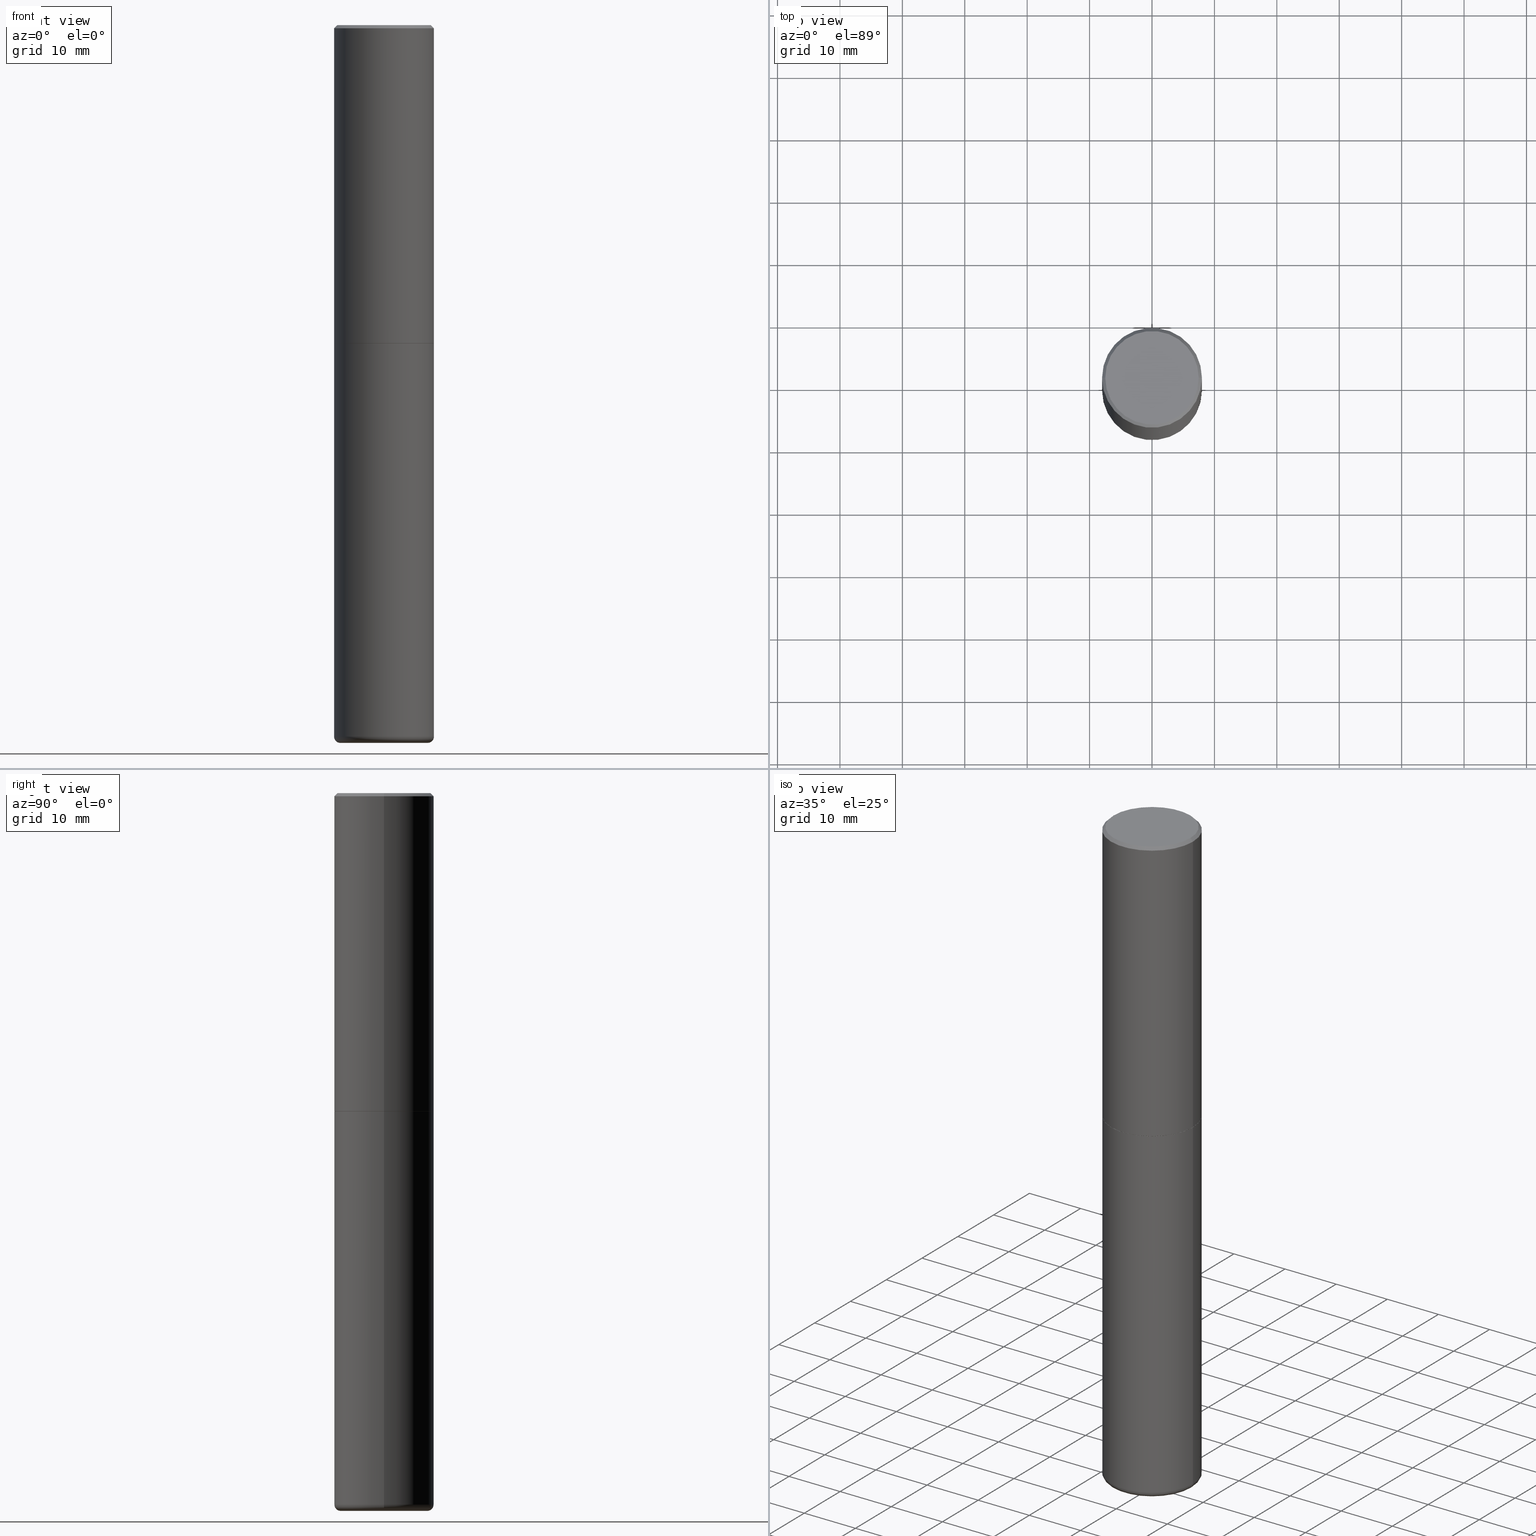
[diagram: canonical four-view strip — front | top / right | iso, engineering-drawing reading convention]
A machine part, canonical four-view strip (front | top / right | iso — engineering-drawing reading convention). The complete STEP part file that produces these views, byte-faithful:
ISO-10303-21;
HEADER;
FILE_DESCRIPTION (( 'STEP AP203' ),
    '1' );
FILE_NAME ('74500.STEP',
    '2024-03-06T15:20:27',
    ( '' ),
    ( '' ),
    'SwSTEP 2.0',
    'SolidWorks 2023',
    '' );
FILE_SCHEMA (( 'CONFIG_CONTROL_DESIGN' ));
ENDSEC;

DATA;
#1 = CARTESIAN_POINT ( 'NONE',  ( 0.2755500000000000171, -1.773218627558267691E-14, -4.527600000000000513 ) ) ;
#2 = EDGE_CURVE ( 'NONE', #312, #53, #48, .T. ) ;
#3 = PERSON_AND_ORGANIZATION ( #212, #323 ) ;
#4 = DIRECTION ( 'NONE',  ( 1.000000000000000000, -6.982962677686265922E-15, 0.000000000000000000 ) ) ;
#5 = SECURITY_CLASSIFICATION_LEVEL ( 'unclassified' ) ;
#6 = EDGE_CURVE ( 'NONE', #248, #145, #142, .T. ) ;
#7 = DIRECTION ( 'NONE',  ( 1.000000000000000000, -6.982962677686267499E-15, 0.000000000000000000 ) ) ;
#8 = EDGE_CURVE ( 'NONE', #146, #207, #82, .T. ) ;
#9 = CIRCLE ( 'NONE', #265, 0.2755500000000000171 ) ;
#10 = ORIENTED_EDGE ( 'NONE', *, *, #131, .F. ) ;
#11 = EDGE_CURVE ( 'NONE', #400, #105, #41, .T. ) ;
#12 = AXIS2_PLACEMENT_3D ( 'NONE', #37, #226, #35 ) ;
#13 = ADVANCED_FACE ( 'NONE', ( #186 ), #164, .T. ) ;
#14 = ORIENTED_EDGE ( 'NONE', *, *, #111, .F. ) ;
#15 = DIRECTION ( 'NONE',  ( 1.000000000000000000, -6.982962677686265922E-15, 4.874125435057328359E-29 ) ) ;
#16 = APPROVAL_STATUS ( 'not_yet_approved' ) ;
#17 = FACE_OUTER_BOUND ( 'NONE', #76, .T. ) ;
#18 = DIRECTION ( 'NONE',  ( -0.7071067811866199593, 7.493145998870616062E-15, 0.7071067811864750752 ) ) ;
#19 = VERTEX_POINT ( 'NONE', #192 ) ;
#20 = DIRECTION ( 'NONE',  ( 1.000000000000000000, -6.982962677686266711E-15, 0.000000000000000000 ) ) ;
#21 = APPROVAL ( #16, 'UNSPECIFIED' ) ;
#22 = PRODUCT_DEFINITION_SHAPE ( 'NONE', 'NONE',  #288 ) ;
#23 = DIRECTION ( 'NONE',  ( -2.445468806185136597E-29, 3.491481338843145583E-15, 1.000000000000000000 ) ) ;
#24 = ORIENTED_EDGE ( 'NONE', *, *, #163, .T. ) ;
#25 = AXIS2_PLACEMENT_3D ( 'NONE', #381, #222, #189 ) ;
#26 = CIRCLE ( 'NONE', #89, 0.03940000000000033753 ) ;
#27 = CARTESIAN_POINT ( 'NONE',  ( 4.910256815939135870E-29, -7.010545380263151710E-15, -2.007899999999999796 ) ) ;
#28 = FACE_OUTER_BOUND ( 'NONE', #340, .T. ) ;
#29 = DIRECTION ( 'NONE',  ( -2.445468806185136597E-29, 3.491481338843145583E-15, 1.000000000000000000 ) ) ;
#30 = DIRECTION ( 'NONE',  ( -2.445468806185136877E-29, 3.491481338843145188E-15, 1.000000000000000000 ) ) ;
#31 = ORIENTED_EDGE ( 'NONE', *, *, #281, .F. ) ;
#32 = AXIS2_PLACEMENT_3D ( 'NONE', #206, #246, #15 ) ;
#33 = AXIS2_PLACEMENT_3D ( 'NONE', #379, #23, #385 ) ;
#34 = DIRECTION ( 'NONE',  ( -2.445468806185136597E-29, 3.491481338843145583E-15, 1.000000000000000000 ) ) ;
#35 = DIRECTION ( 'NONE',  ( 1.000000000000000000, -6.982962677686265922E-15, 0.000000000000000000 ) ) ;
#36 = EDGE_LOOP ( 'NONE', ( #43, #205, #403, #285 ) ) ;
#37 = CARTESIAN_POINT ( 'NONE',  ( 4.890937612370289799E-31, -6.982962677686315028E-17, -0.02000000000000006981 ) ) ;
#38 = CONICAL_SURFACE ( 'NONE', #185, 0.3149499999999998967, 0.7853981633974471688 ) ;
#39 = EDGE_CURVE ( 'NONE', #276, #304, #26, .T. ) ;
#40 = EDGE_CURVE ( 'NONE', #53, #216, #125, .T. ) ;
#41 = CIRCLE ( 'NONE', #270, 0.03940000000000033753 ) ;
#42 = DATE_AND_TIME ( #203, #272 ) ;
#43 = ORIENTED_EDGE ( 'NONE', *, *, #40, .F. ) ;
#44 = DIRECTION ( 'NONE',  ( -0.7071067811865466846, 2.468850131082247989E-15, -0.7071067811865483499 ) ) ;
#45 = PERSON_AND_ORGANIZATION ( #212, #323 ) ;
#46 = AXIS2_PLACEMENT_3D ( 'NONE', #96, #171, #7 ) ;
#47 = CARTESIAN_POINT ( 'NONE',  ( -0.3149500000000000077, 2.237854346276435590E-15, -1.549218606675782676E-29 ) ) ;
#48 = LINE ( 'NONE', #179, #394 ) ;
#49 = VERTEX_POINT ( 'NONE', #158 ) ;
#50 = APPROVAL ( #119, 'UNSPECIFIED' ) ;
#51 = DIRECTION ( 'NONE',  ( -2.445468806185136597E-29, 3.491481338843145583E-15, 1.000000000000000000 ) ) ;
#52 = DIRECTION ( 'NONE',  ( 7.105427357601001859E-15, 1.000000000000000000, -3.491481338843145583E-15 ) ) ;
#53 = VERTEX_POINT ( 'NONE', #55 ) ;
#54 = CARTESIAN_POINT ( 'NONE',  ( 4.910256815939135870E-29, -7.010545380263151710E-15, -2.007899999999999796 ) ) ;
#55 = CARTESIAN_POINT ( 'NONE',  ( -0.3149500000000002853, -1.300587416574145677E-15, -2.006899999999999906 ) ) ;
#56 = VECTOR ( 'NONE', #365, 39.37007874015748143 ) ;
#57 = AXIS2_PLACEMENT_3D ( 'NONE', #27, #318, #61 ) ;
#58 = AXIS2_PLACEMENT_3D ( 'NONE', #328, #29, #292 ) ;
#59 = DIRECTION ( 'NONE',  ( -1.000000000000000000, 6.982962677686265922E-15, 0.000000000000000000 ) ) ;
#60 = DIRECTION ( 'NONE',  ( -1.000000000000000000, 6.982962677686265922E-15, -4.876176775795935793E-29 ) ) ;
#61 = DIRECTION ( 'NONE',  ( 1.000000000000000000, -6.982962677686266711E-15, 0.000000000000000000 ) ) ;
#62 = CARTESIAN_POINT ( 'NONE',  ( 4.890937612370289799E-31, -6.982962677686315028E-17, -0.02000000000000006981 ) ) ;
#63 = VECTOR ( 'NONE', #30, 39.37007874015748143 ) ;
#64 = APPROVAL ( #109, 'UNSPECIFIED' ) ;
#65 = APPROVAL_PERSON_ORGANIZATION ( #279, #21, #182 ) ;
#66 = APPROVAL_DATE_TIME ( #356, #50 ) ;
#67 = APPROVAL_DATE_TIME ( #327, #21 ) ;
#68 = CALENDAR_DATE ( 2024, 6, 3 ) ;
#69 = ORIENTED_EDGE ( 'NONE', *, *, #199, .T. ) ;
#70 = ADVANCED_FACE ( 'NONE', ( #259 ), #407, .T. ) ;
#71 = ORIENTED_EDGE ( 'NONE', *, *, #290, .T. ) ;
#72 = LENGTH_MEASURE_WITH_UNIT ( LENGTH_MEASURE( 0.02539999999999999897 ), #215 );
#73 = DIMENSIONAL_EXPONENTS ( 1.000000000000000000, 0.000000000000000000, 0.000000000000000000, 0.000000000000000000, 0.000000000000000000, 0.000000000000000000, 0.000000000000000000 ) ;
#74 = CC_DESIGN_APPROVAL ( #64, ( #291 ) ) ;
#75 = EDGE_CURVE ( 'NONE', #400, #276, #9, .T. ) ;
#76 = EDGE_LOOP ( 'NONE', ( #178, #173 ) ) ;
#77 = AXIS2_PLACEMENT_3D ( 'NONE', #149, #280, #402 ) ;
#78 = ADVANCED_FACE ( 'NONE', ( #311 ), #325, .T. ) ;
#79 = DATE_AND_TIME ( #97, #95 ) ;
#80 = DIRECTION ( 'NONE',  ( -2.445468806185136597E-29, 3.491481338843145583E-15, 1.000000000000000000 ) ) ;
#81 = UNCERTAINTY_MEASURE_WITH_UNIT (LENGTH_MEASURE( 1.000000000000000082E-05 ), #234, 'distance_accuracy_value', 'NONE');
#82 = LINE ( 'NONE', #220, #211 ) ;
#83 = ORIENTED_EDGE ( 'NONE', *, *, #387, .F. ) ;
#84 = DIRECTION ( 'NONE',  ( -1.000000000000000000, 7.105427357601014480E-15, 0.000000000000000000 ) ) ;
#85 = FACE_OUTER_BOUND ( 'NONE', #376, .T. ) ;
#86 = DIRECTION ( 'NONE',  ( 1.000000000000000000, -6.982962677686266711E-15, 0.000000000000000000 ) ) ;
#87 = AXIS2_PLACEMENT_3D ( 'NONE', #332, #268, #148 ) ;
#88 = ORIENTED_EDGE ( 'NONE', *, *, #111, .T. ) ;
#89 = AXIS2_PLACEMENT_3D ( 'NONE', #130, #260, #409 ) ;
#90 = DIRECTION ( 'NONE',  ( -2.445468806185136597E-29, 3.491481338843145583E-15, 1.000000000000000000 ) ) ;
#91 = CARTESIAN_POINT ( 'NONE',  ( 1.107210456688382522E-28, -1.580803090974622705E-14, -4.527600000000000513 ) ) ;
#92 = DIRECTION ( 'NONE',  ( 1.000000000000000000, -6.982962677686263555E-15, 0.000000000000000000 ) ) ;
#93 = CARTESIAN_POINT ( 'NONE',  ( 4.910256815939135870E-29, -7.010545380263151710E-15, -2.007899999999999796 ) ) ;
#94 = DIRECTION ( 'NONE',  ( -2.445468806185136597E-29, 3.491481338843145583E-15, 1.000000000000000000 ) ) ;
#95 = LOCAL_TIME ( 10, 20, 27.00000000000000000, #329 ) ;
#96 = CARTESIAN_POINT ( 'NONE',  ( 4.907811347132950267E-29, -7.007053898924307914E-15, -2.006899999999999906 ) ) ;
#97 = CALENDAR_DATE ( 2024, 6, 3 ) ;
#98 = ORIENTED_EDGE ( 'NONE', *, *, #11, .T. ) ;
#99 = COORDINATED_UNIVERSAL_TIME_OFFSET ( 5, 0, .BEHIND. ) ;
#100 =( NAMED_UNIT ( * ) SI_UNIT ( $, .STERADIAN. ) SOLID_ANGLE_UNIT ( ) );
#101 = AXIS2_PLACEMENT_3D ( 'NONE', #294, #90, #224 ) ;
#102 = EDGE_LOOP ( 'NONE', ( #69, #98, #397, #150 ) ) ;
#103 = MANIFOLD_SOLID_BREP ( 'Body-Move/Copy2[1]', #162 ) ;
#104 = APPROVAL_PERSON_ORGANIZATION ( #341, #64, #374 ) ;
#105 = VERTEX_POINT ( 'NONE', #345 ) ;
#106 =( NAMED_UNIT ( * ) PLANE_ANGLE_UNIT ( ) SI_UNIT ( $, .RADIAN. ) );
#107 = ORIENTED_EDGE ( 'NONE', *, *, #168, .F. ) ;
#108 = ORIENTED_EDGE ( 'NONE', *, *, #6, .F. ) ;
#109 = APPROVAL_STATUS ( 'not_yet_approved' ) ;
#110 = LINE ( 'NONE', #184, #364 ) ;
#111 = EDGE_CURVE ( 'NONE', #304, #301, #315, .T. ) ;
#112 = ORIENTED_EDGE ( 'NONE', *, *, #333, .F. ) ;
#113 = ORIENTED_EDGE ( 'NONE', *, *, #8, .F. ) ;
#114 = CARTESIAN_POINT ( 'NONE',  ( 4.890937612370289799E-31, -6.982962677686315028E-17, -0.02000000000000006981 ) ) ;
#115 = DIRECTION ( 'NONE',  ( 1.000000000000000000, -6.982962677686266711E-15, 4.876176775795936353E-29 ) ) ;
#116 = ORIENTED_EDGE ( 'NONE', *, *, #131, .T. ) ;
#117 = AXIS2_PLACEMENT_3D ( 'NONE', #253, #183, #389 ) ;
#118 = DIRECTION ( 'NONE',  ( 0.7071067811865466846, -7.319954787623252890E-15, -0.7071067811865483499 ) ) ;
#119 = APPROVAL_STATUS ( 'not_yet_approved' ) ;
#120 = LINE ( 'NONE', #320, #250 ) ;
#121 = EDGE_LOOP ( 'NONE', ( #360, #208 ) ) ;
#122 = DIRECTION ( 'NONE',  ( -2.438088387897960049E-29, 3.491481338843145188E-15, 1.000000000000000000 ) ) ;
#123 = ADVANCED_FACE ( 'NONE', ( #284 ), #384, .T. ) ;
#124 = DATE_TIME_ROLE ( 'creation_date' ) ;
#125 = LINE ( 'NONE', #128, #404 ) ;
#126 = FACE_OUTER_BOUND ( 'NONE', #102, .T. ) ;
#127 = CC_DESIGN_APPROVAL ( #21, ( #288 ) ) ;
#128 = CARTESIAN_POINT ( 'NONE',  ( -0.3149500000000000632, 2.237854346276435985E-15, -1.549218606675782956E-29 ) ) ;
#129 = CARTESIAN_POINT ( 'NONE',  ( 4.910256815939135870E-29, -7.010545380263151710E-15, -2.007899999999999796 ) ) ;
#130 = CARTESIAN_POINT ( 'NONE',  ( 0.2755500000000000171, -1.759462191083225139E-14, -4.488199999999999079 ) ) ;
#131 = EDGE_CURVE ( 'NONE', #49, #146, #120, .T. ) ;
#132 = EDGE_CURVE ( 'NONE', #312, #49, #200, .T. ) ;
#133 = AXIS2_PLACEMENT_3D ( 'NONE', #354, #194, #322 ) ;
#134 = CIRCLE ( 'NONE', #221, 0.3149500000000000077 ) ;
#135 = ADVANCED_FACE ( 'NONE', ( #287 ), #256, .F. ) ;
#136 = ADVANCED_FACE ( 'NONE', ( #126 ), #261, .T. ) ;
#137 = PERSON_AND_ORGANIZATION ( #212, #323 ) ;
#138 = EDGE_CURVE ( 'NONE', #53, #146, #314, .T. ) ;
#139 = EDGE_LOOP ( 'NONE', ( #275, #282 ) ) ;
#140 = ORIENTED_EDGE ( 'NONE', *, *, #231, .T. ) ;
#141 = AXIS2_PLACEMENT_3D ( 'NONE', #129, #388, #92 ) ;
#142 = CIRCLE ( 'NONE', #77, 0.2949499999999996014 ) ;
#143 = AXIS2_PLACEMENT_3D ( 'NONE', #283, #377, #219 ) ;
#144 = FACE_OUTER_BOUND ( 'NONE', #241, .T. ) ;
#145 = VERTEX_POINT ( 'NONE', #293 ) ;
#146 = VERTEX_POINT ( 'NONE', #412 ) ;
#147 = CARTESIAN_POINT ( 'NONE',  ( 0.3149500000000000077, -9.209829475600440793E-15, -2.007899999999999796 ) ) ;
#148 = DIRECTION ( 'NONE',  ( 1.000000000000000000, 0.000000000000000000, 0.000000000000000000 ) ) ;
#149 = CARTESIAN_POINT ( 'NONE',  ( -6.889419334612450925E-45, 9.836264924510951028E-31, 2.817218243466271259E-16 ) ) ;
#150 = ORIENTED_EDGE ( 'NONE', *, *, #39, .F. ) ;
#151 = DIRECTION ( 'NONE',  ( 1.000000000000000000, -6.982962677686266711E-15, 4.876176775795936353E-29 ) ) ;
#152 = COORDINATED_UNIVERSAL_TIME_OFFSET ( 5, 0, .BEHIND. ) ;
#153 = CARTESIAN_POINT ( 'NONE',  ( 0.3149500000000000077, -2.199284095337289871E-15, 1.535751875536930130E-29 ) ) ;
#154 = ORIENTED_EDGE ( 'NONE', *, *, #378, .T. ) ;
#155 = CARTESIAN_POINT ( 'NONE',  ( 0.3149500000000001743, -1.786975064033308982E-14, -4.488199999999999079 ) ) ;
#156 = DIRECTION ( 'NONE',  ( -2.445468806185136597E-29, 3.491481338843145583E-15, 1.000000000000000000 ) ) ;
#157 = FACE_OUTER_BOUND ( 'NONE', #373, .T. ) ;
#158 = CARTESIAN_POINT ( 'NONE',  ( 0.3139500000000000068, -9.202846512922754778E-15, -2.007899999999999796 ) ) ;
#159 = PERSON_AND_ORGANIZATION ( #212, #323 ) ;
#160 = DIRECTION ( 'NONE',  ( -2.445468806185136597E-29, 3.491481338843145583E-15, 1.000000000000000000 ) ) ;
#161 = CC_DESIGN_SECURITY_CLASSIFICATION ( #291, ( #357 ) ) ;
#162 = CLOSED_SHELL ( 'NONE', ( #70, #136, #295, #386, #353, #123 ) ) ;
#163 = EDGE_CURVE ( 'NONE', #216, #207, #237, .T. ) ;
#164 = CYLINDRICAL_SURFACE ( 'NONE', #117, 0.3149500000000000632 ) ;
#165 = FACE_OUTER_BOUND ( 'NONE', #303, .T. ) ;
#166 = DIRECTION ( 'NONE',  ( 1.000000000000000000, -6.982962677686269866E-15, 0.000000000000000000 ) ) ;
#167 = AXIS2_PLACEMENT_3D ( 'NONE', #289, #252, #20 ) ;
#168 = EDGE_CURVE ( 'NONE', #146, #53, #347, .T. ) ;
#169 = PERSON_AND_ORGANIZATION_ROLE ( 'creator' ) ;
#170 = APPLICATION_CONTEXT ( 'configuration controlled 3d designs of mechanical parts and assemblies' ) ;
#171 = DIRECTION ( 'NONE',  ( -2.445468806185136597E-29, 3.491481338843145583E-15, 1.000000000000000000 ) ) ;
#172 = AXIS2_PLACEMENT_3D ( 'NONE', #93, #156, #86 ) ;
#173 = ORIENTED_EDGE ( 'NONE', *, *, #232, .T. ) ;
#174 = ORIENTED_EDGE ( 'NONE', *, *, #11, .F. ) ;
#175 = CARTESIAN_POINT ( 'NONE',  ( 1.097575309592012950E-28, -1.567046654499580152E-14, -4.488199999999999079 ) ) ;
#176 = LOCAL_TIME ( 10, 20, 27.00000000000000000, #418 ) ;
#177 = PERSON_AND_ORGANIZATION_ROLE ( 'design_owner' ) ;
#178 = ORIENTED_EDGE ( 'NONE', *, *, #387, .T. ) ;
#179 = CARTESIAN_POINT ( 'NONE',  ( -0.3139500000000000068, -4.779796461344316734E-15, -2.007899999999999796 ) ) ;
#180 = APPLICATION_CONTEXT ( 'configuration controlled 3d designs of mechanical parts and assemblies' ) ;
#181 = DIRECTION ( 'NONE',  ( -2.445468806185136597E-29, 3.491481338843145583E-15, 1.000000000000000000 ) ) ;
#182 = APPROVAL_ROLE ( '' ) ;
#183 = DIRECTION ( 'NONE',  ( -2.445468806185136597E-29, 3.491481338843145583E-15, 1.000000000000000000 ) ) ;
#184 = CARTESIAN_POINT ( 'NONE',  ( -0.3149499999999998967, 2.129454468560425784E-15, -0.02000000000000006981 ) ) ;
#185 = AXIS2_PLACEMENT_3D ( 'NONE', #114, #346, #59 ) ;
#186 = FACE_OUTER_BOUND ( 'NONE', #36, .T. ) ;
#187 = AXIS2_PLACEMENT_3D ( 'NONE', #350, #257, #349 ) ;
#188 = VECTOR ( 'NONE', #118, 39.37007874015748143 ) ;
#189 = DIRECTION ( 'NONE',  ( -1.000000000000000000, 6.982962677686265922E-15, -4.876176775795935793E-29 ) ) ;
#190 = DIRECTION ( 'NONE',  ( -2.445468806185136877E-29, 3.491481338843145188E-15, 1.000000000000000000 ) ) ;
#191 = EDGE_CURVE ( 'NONE', #105, #19, #416, .T. ) ;
#192 = CARTESIAN_POINT ( 'NONE',  ( -0.3149500000000000077, -9.102651616353041816E-15, -2.007899999999999796 ) ) ;
#193 = CARTESIAN_POINT ( 'NONE',  ( -0.3149499999999998967, 2.129454468560425784E-15, -0.02000000000000006981 ) ) ;
#194 = DIRECTION ( 'NONE',  ( 2.445468806185136597E-29, -3.491481338843145583E-15, -1.000000000000000000 ) ) ;
#195 = AXIS2_PLACEMENT_3D ( 'NONE', #273, #51, #115 ) ;
#196 = AXIS2_PLACEMENT_3D ( 'NONE', #175, #274, #310 ) ;
#197 = CYLINDRICAL_SURFACE ( 'NONE', #195, 0.3149500000000000632 ) ;
#198 = CC_DESIGN_PERSON_AND_ORGANIZATION_ASSIGNMENT ( #266, #267, ( #291 ) ) ;
#199 = EDGE_CURVE ( 'NONE', #276, #400, #313, .T. ) ;
#200 = CIRCLE ( 'NONE', #57, 0.3139500000000000068 ) ;
#201 = ORIENTED_EDGE ( 'NONE', *, *, #258, .F. ) ;
#202 = PRODUCT ( '74500', '74500', '', ( #239 ) ) ;
#203 = CALENDAR_DATE ( 2024, 6, 3 ) ;
#204 = ORIENTED_EDGE ( 'NONE', *, *, #290, .F. ) ;
#205 = ORIENTED_EDGE ( 'NONE', *, *, #138, .T. ) ;
#206 = CARTESIAN_POINT ( 'NONE',  ( -6.889419334612450925E-45, 9.836264924510951028E-31, 2.817218243466271259E-16 ) ) ;
#207 = VERTEX_POINT ( 'NONE', #319 ) ;
#208 = ORIENTED_EDGE ( 'NONE', *, *, #132, .F. ) ;
#209 = DIRECTION ( 'NONE',  ( -1.000000000000000000, 6.982962677686265922E-15, -4.876176775795935793E-29 ) ) ;
#210 = CC_DESIGN_APPROVAL ( #50, ( #357 ) ) ;
#211 = VECTOR ( 'NONE', #190, 39.37007874015748143 ) ;
#212 = PERSON ( 'UNSPECIFIED', 'UNSPECIFIED', 'UNSPECIFIED', ('UNSPECIFIED'), ('UNSPECIFIED'), ('UNSPECIFIED') ) ;
#213 = ORIENTED_EDGE ( 'NONE', *, *, #2, .F. ) ;
#214 = EDGE_LOOP ( 'NONE', ( #174, #235, #240, #31 ) ) ;
#215 =( LENGTH_UNIT ( ) NAMED_UNIT ( * ) SI_UNIT ( $, .METRE. ) );
#216 = VERTEX_POINT ( 'NONE', #193 ) ;
#217 = ORIENTED_EDGE ( 'NONE', *, *, #281, .T. ) ;
#218 = CC_DESIGN_PERSON_AND_ORGANIZATION_ASSIGNMENT ( #137, #169, ( #357 ) ) ;
#219 = DIRECTION ( 'NONE',  ( 1.000000000000000000, -6.982962677686263555E-15, 0.000000000000000000 ) ) ;
#220 = CARTESIAN_POINT ( 'NONE',  ( 0.3149500000000000632, -2.199284095337290265E-15, 1.535751875536930410E-29 ) ) ;
#221 = AXIS2_PLACEMENT_3D ( 'NONE', #392, #94, #233 ) ;
#222 = DIRECTION ( 'NONE',  ( 2.438088387897960049E-29, -3.491481338843145188E-15, -1.000000000000000000 ) ) ;
#223 = CIRCLE ( 'NONE', #382, 0.3139500000000000068 ) ;
#224 = DIRECTION ( 'NONE',  ( 1.000000000000000000, -6.982962677686261977E-15, 4.883557194083111780E-29 ) ) ;
#225 = DIRECTION ( 'NONE',  ( 2.438088387897960049E-29, -3.491481338843145188E-15, -1.000000000000000000 ) ) ;
#226 = DIRECTION ( 'NONE',  ( -2.445468806185136597E-29, 3.491481338843145583E-15, 1.000000000000000000 ) ) ;
#227 = DIRECTION ( 'NONE',  ( -2.445468806185136877E-29, 3.491481338843145188E-15, 1.000000000000000000 ) ) ;
#228 = CARTESIAN_POINT ( 'NONE',  ( -0.2949499999999996014, 2.094539655171994135E-15, 2.817218243466126306E-16 ) ) ;
#229 = CARTESIAN_POINT ( 'NONE',  ( 1.097575309592012950E-28, -1.567046654499580152E-14, -4.488199999999999079 ) ) ;
#230 = APPROVAL_PERSON_ORGANIZATION ( #159, #50, #390 ) ;
#231 = EDGE_CURVE ( 'NONE', #304, #105, #361, .T. ) ;
#232 = EDGE_CURVE ( 'NONE', #19, #301, #383, .T. ) ;
#233 = DIRECTION ( 'NONE',  ( 1.000000000000000000, -6.982962677686269866E-15, 0.000000000000000000 ) ) ;
#234 =( CONVERSION_BASED_UNIT ( 'INCH', #72 ) LENGTH_UNIT ( ) NAMED_UNIT ( #73 ) );
#235 = ORIENTED_EDGE ( 'NONE', *, *, #75, .T. ) ;
#236 = AXIS2_PLACEMENT_3D ( 'NONE', #229, #413, #166 ) ;
#237 = CIRCLE ( 'NONE', #297, 0.3149499999999998967 ) ;
#238 = AXIS2_PLACEMENT_3D ( 'NONE', #54, #122, #254 ) ;
#239 = MECHANICAL_CONTEXT ( 'NONE', #180, 'mechanical' ) ;
#240 = ORIENTED_EDGE ( 'NONE', *, *, #39, .T. ) ;
#241 = EDGE_LOOP ( 'NONE', ( #112, #71, #249, #343 ) ) ;
#242 = APPROVAL_DATE_TIME ( #331, #64 ) ;
#243 = ORIENTED_EDGE ( 'NONE', *, *, #191, .F. ) ;
#244 = ORIENTED_EDGE ( 'NONE', *, *, #321, .T. ) ;
#245 = CALENDAR_DATE ( 2024, 6, 3 ) ;
#246 = DIRECTION ( 'NONE',  ( -2.445468806185136597E-29, 3.491481338843145583E-15, 1.000000000000000000 ) ) ;
#247 = PERSON_AND_ORGANIZATION ( #212, #323 ) ;
#248 = VERTEX_POINT ( 'NONE', #228 ) ;
#249 = ORIENTED_EDGE ( 'NONE', *, *, #258, .T. ) ;
#250 = VECTOR ( 'NONE', #348, 39.37007874015748143 ) ;
#251 = ORIENTED_EDGE ( 'NONE', *, *, #40, .T. ) ;
#252 = DIRECTION ( 'NONE',  ( -2.445468806185136597E-29, 3.491481338843145583E-15, 1.000000000000000000 ) ) ;
#253 = CARTESIAN_POINT ( 'NONE',  ( 0.000000000000000000, 0.000000000000000000, 0.000000000000000000 ) ) ;
#254 = DIRECTION ( 'NONE',  ( 1.000000000000000000, -6.982962677686265922E-15, 4.876176775795935793E-29 ) ) ;
#255 = MANIFOLD_SOLID_BREP ( 'Body-Move/Copy2[2]', #336 ) ;
#256 = PLANE ( 'NONE',  #25 ) ;
#257 = DIRECTION ( 'NONE',  ( -2.445468806185136597E-29, 3.491481338843145583E-15, 1.000000000000000000 ) ) ;
#258 = EDGE_CURVE ( 'NONE', #207, #216, #393, .T. ) ;
#259 = FACE_OUTER_BOUND ( 'NONE', #339, .T. ) ;
#260 = DIRECTION ( 'NONE',  ( -6.982962677686266711E-15, -1.000000000000000000, 3.491481338843145583E-15 ) ) ;
#261 = TOROIDAL_SURFACE ( 'NONE', #101, 0.2755500000000000171, 0.03940000000000033753 ) ;
#262 = CONICAL_SURFACE ( 'NONE', #133, 0.3149499999999998967, 0.7853981633974471688 ) ;
#263 = ADVANCED_FACE ( 'NONE', ( #165 ), #262, .T. ) ;
#264 = LOCAL_TIME ( 10, 20, 27.00000000000000000, #99 ) ;
#265 = AXIS2_PLACEMENT_3D ( 'NONE', #91, #160, #414 ) ;
#266 = PERSON_AND_ORGANIZATION ( #212, #323 ) ;
#267 = PERSON_AND_ORGANIZATION_ROLE ( 'classification_officer' ) ;
#268 = DIRECTION ( 'NONE',  ( 0.000000000000000000, 0.000000000000000000, 1.000000000000000000 ) ) ;
#269 =( GEOMETRIC_REPRESENTATION_CONTEXT ( 3 ) GLOBAL_UNCERTAINTY_ASSIGNED_CONTEXT ( ( #81 ) ) GLOBAL_UNIT_ASSIGNED_CONTEXT ( ( #234, #106, #100 ) ) REPRESENTATION_CONTEXT ( 'NONE', 'WORKASPACE' ) );
#270 = AXIS2_PLACEMENT_3D ( 'NONE', #317, #52, #84 ) ;
#271 = LINE ( 'NONE', #337, #188 ) ;
#272 = LOCAL_TIME ( 10, 20, 27.00000000000000000, #152 ) ;
#273 = CARTESIAN_POINT ( 'NONE',  ( 0.000000000000000000, 0.000000000000000000, 0.000000000000000000 ) ) ;
#274 = DIRECTION ( 'NONE',  ( -2.445468806185136597E-29, 3.491481338843145583E-15, 1.000000000000000000 ) ) ;
#275 = ORIENTED_EDGE ( 'NONE', *, *, #6, .T. ) ;
#276 = VERTEX_POINT ( 'NONE', #1 ) ;
#277 = PLANE ( 'NONE',  #335 ) ;
#278 = CC_DESIGN_PERSON_AND_ORGANIZATION_ASSIGNMENT ( #3, #299, ( #357 ) ) ;
#279 = PERSON_AND_ORGANIZATION ( #212, #323 ) ;
#280 = DIRECTION ( 'NONE',  ( -2.445468806185136597E-29, 3.491481338843145583E-15, 1.000000000000000000 ) ) ;
#281 = EDGE_CURVE ( 'NONE', #105, #304, #134, .T. ) ;
#282 = ORIENTED_EDGE ( 'NONE', *, *, #333, .T. ) ;
#283 = CARTESIAN_POINT ( 'NONE',  ( 4.910256815939135870E-29, -7.010545380263151710E-15, -2.007899999999999796 ) ) ;
#284 = FACE_OUTER_BOUND ( 'NONE', #371, .T. ) ;
#285 = ORIENTED_EDGE ( 'NONE', *, *, #163, .F. ) ;
#286 = FACE_OUTER_BOUND ( 'NONE', #214, .T. ) ;
#287 = FACE_OUTER_BOUND ( 'NONE', #139, .T. ) ;
#288 = PRODUCT_DEFINITION ( 'UNKNOWN', '', #357, #352 ) ;
#289 = CARTESIAN_POINT ( 'NONE',  ( 4.910256815939135870E-29, -7.010545380263151710E-15, -2.007899999999999796 ) ) ;
#290 = EDGE_CURVE ( 'NONE', #145, #207, #271, .T. ) ;
#291 = SECURITY_CLASSIFICATION ( '', '', #5 ) ;
#292 = DIRECTION ( 'NONE',  ( 1.000000000000000000, -6.982962677686268288E-15, 0.000000000000000000 ) ) ;
#293 = CARTESIAN_POINT ( 'NONE',  ( 0.2949499999999996014, -2.127023677808857708E-15, 2.817218243466417691E-16 ) ) ;
#294 = CARTESIAN_POINT ( 'NONE',  ( 1.097575309592012950E-28, -1.567046654499580152E-14, -4.488199999999999079 ) ) ;
#295 = ADVANCED_FACE ( 'NONE', ( #17 ), #277, .F. ) ;
#296 = CC_DESIGN_DATE_AND_TIME_ASSIGNMENT ( #79, #396, ( #291 ) ) ;
#297 = AXIS2_PLACEMENT_3D ( 'NONE', #62, #34, #4 ) ;
#298 = TOROIDAL_SURFACE ( 'NONE', #196, 0.2755500000000000171, 0.03940000000000033753 ) ;
#299 = PERSON_AND_ORGANIZATION_ROLE ( 'design_supplier' ) ;
#300 = ORIENTED_EDGE ( 'NONE', *, *, #168, .T. ) ;
#301 = VERTEX_POINT ( 'NONE', #147 ) ;
#302 = APPLICATION_PROTOCOL_DEFINITION ( 'international standard', 'config_control_design', 1994, #180 ) ;
#303 = EDGE_LOOP ( 'NONE', ( #204, #108, #244, #24 ) ) ;
#304 = VERTEX_POINT ( 'NONE', #155 ) ;
#305 = LOCAL_TIME ( 10, 20, 27.00000000000000000, #366 ) ;
#306 = DIRECTION ( 'NONE',  ( 2.438088387897960049E-29, -3.491481338843145188E-15, -1.000000000000000000 ) ) ;
#307 = APPLICATION_PROTOCOL_DEFINITION ( 'international standard', 'config_control_design', 1994, #170 ) ;
#308 = ADVANCED_FACE ( 'NONE', ( #144 ), #38, .T. ) ;
#309 = ORIENTED_EDGE ( 'NONE', *, *, #132, .T. ) ;
#310 = DIRECTION ( 'NONE',  ( 1.000000000000000000, -6.982962677686261977E-15, 4.883557194083111780E-29 ) ) ;
#311 = FACE_OUTER_BOUND ( 'NONE', #399, .T. ) ;
#312 = VERTEX_POINT ( 'NONE', #316 ) ;
#313 = CIRCLE ( 'NONE', #58, 0.2755500000000000171 ) ;
#314 = CIRCLE ( 'NONE', #187, 0.3149500000000002853 ) ;
#315 = LINE ( 'NONE', #153, #63 ) ;
#316 = CARTESIAN_POINT ( 'NONE',  ( -0.3139500000000000068, -4.774498006996093543E-15, -2.007899999999999796 ) ) ;
#317 = CARTESIAN_POINT ( 'NONE',  ( -0.2755500000000000171, -1.371256603660884731E-14, -4.488199999999999079 ) ) ;
#318 = DIRECTION ( 'NONE',  ( -2.445468806185136597E-29, 3.491481338843145583E-15, 1.000000000000000000 ) ) ;
#319 = CARTESIAN_POINT ( 'NONE',  ( 0.3149499999999998967, -2.230543471175006266E-15, -0.02000000000000006981 ) ) ;
#320 = CARTESIAN_POINT ( 'NONE',  ( 0.3139500000000000068, -9.202846512922754778E-15, -2.007899999999999796 ) ) ;
#321 = EDGE_CURVE ( 'NONE', #248, #216, #110, .T. ) ;
#322 = DIRECTION ( 'NONE',  ( -1.000000000000000000, 6.982962677686265922E-15, 0.000000000000000000 ) ) ;
#323 = ORGANIZATION ( 'UNSPECIFIED', 'UNSPECIFIED', '' ) ;
#324 = CIRCLE ( 'NONE', #143, 0.3149500000000000077 ) ;
#325 = CONICAL_SURFACE ( 'NONE', #172, 0.3139500000000000068, 0.7853981633975507526 ) ;
#326 = CC_DESIGN_PERSON_AND_ORGANIZATION_ASSIGNMENT ( #45, #177, ( #202 ) ) ;
#327 = DATE_AND_TIME ( #68, #305 ) ;
#328 = CARTESIAN_POINT ( 'NONE',  ( 1.107210456688382522E-28, -1.580803090974622705E-14, -4.527600000000000513 ) ) ;
#329 = COORDINATED_UNIVERSAL_TIME_OFFSET ( 5, 0, .BEHIND. ) ;
#330 = ORIENTED_EDGE ( 'NONE', *, *, #191, .T. ) ;
#331 = DATE_AND_TIME ( #245, #264 ) ;
#332 = CARTESIAN_POINT ( 'NONE',  ( 0.000000000000000000, 0.000000000000000000, 0.000000000000000000 ) ) ;
#333 = EDGE_CURVE ( 'NONE', #145, #248, #415, .T. ) ;
#334 = ORIENTED_EDGE ( 'NONE', *, *, #2, .T. ) ;
#335 = AXIS2_PLACEMENT_3D ( 'NONE', #401, #306, #209 ) ;
#336 = CLOSED_SHELL ( 'NONE', ( #355, #411, #308, #263, #13, #78, #398, #135 ) ) ;
#337 = CARTESIAN_POINT ( 'NONE',  ( 0.3149499999999998967, -2.230543471175006266E-15, -0.02000000000000006981 ) ) ;
#338 = PERSON_AND_ORGANIZATION_ROLE ( 'creator' ) ;
#339 = EDGE_LOOP ( 'NONE', ( #140, #330, #83, #14 ) ) ;
#340 = EDGE_LOOP ( 'NONE', ( #154, #334, #107, #10 ) ) ;
#341 = PERSON_AND_ORGANIZATION ( #212, #323 ) ;
#342 = CYLINDRICAL_SURFACE ( 'NONE', #417, 0.3149500000000000077 ) ;
#343 = ORIENTED_EDGE ( 'NONE', *, *, #321, .F. ) ;
#344 = PLANE ( 'NONE',  #238 ) ;
#345 = CARTESIAN_POINT ( 'NONE',  ( -0.3149500000000001743, -1.343261219871936712E-14, -4.488199999999999079 ) ) ;
#346 = DIRECTION ( 'NONE',  ( 2.445468806185136597E-29, -3.491481338843145583E-15, -1.000000000000000000 ) ) ;
#347 = CIRCLE ( 'NONE', #46, 0.3149500000000002853 ) ;
#348 = DIRECTION ( 'NONE',  ( 0.7071067811866199593, -2.468850131083015945E-15, 0.7071067811864750752 ) ) ;
#349 = DIRECTION ( 'NONE',  ( 1.000000000000000000, -6.982962677686267499E-15, 0.000000000000000000 ) ) ;
#350 = CARTESIAN_POINT ( 'NONE',  ( 4.907811347132950267E-29, -7.007053898924307914E-15, -2.006899999999999906 ) ) ;
#351 = CC_DESIGN_DATE_AND_TIME_ASSIGNMENT ( #42, #124, ( #288 ) ) ;
#352 = DESIGN_CONTEXT ( 'detailed design', #170, 'design' ) ;
#353 = ADVANCED_FACE ( 'NONE', ( #286 ), #298, .T. ) ;
#354 = CARTESIAN_POINT ( 'NONE',  ( 4.890937612370289799E-31, -6.982962677686315028E-17, -0.02000000000000006981 ) ) ;
#355 = ADVANCED_FACE ( 'NONE', ( #28 ), #410, .T. ) ;
#356 = DATE_AND_TIME ( #391, #176 ) ;
#357 = PRODUCT_DEFINITION_FORMATION_WITH_SPECIFIED_SOURCE ( 'ANY', '', #202, .NOT_KNOWN. ) ;
#358 = ADVANCED_BREP_SHAPE_REPRESENTATION ( '74500', ( #103, #255, #87 ), #269 ) ;
#359 = CC_DESIGN_PERSON_AND_ORGANIZATION_ASSIGNMENT ( #247, #338, ( #288 ) ) ;
#360 = ORIENTED_EDGE ( 'NONE', *, *, #378, .F. ) ;
#361 = CIRCLE ( 'NONE', #236, 0.3149500000000000077 ) ;
#362 = ORIENTED_EDGE ( 'NONE', *, *, #75, .F. ) ;
#363 = AXIS2_PLACEMENT_3D ( 'NONE', #405, #225, #60 ) ;
#364 = VECTOR ( 'NONE', #44, 39.37007874015748143 ) ;
#365 = DIRECTION ( 'NONE',  ( -2.445468806185136877E-29, 3.491481338843145188E-15, 1.000000000000000000 ) ) ;
#366 = COORDINATED_UNIVERSAL_TIME_OFFSET ( 5, 0, .BEHIND. ) ;
#367 = ORIENTED_EDGE ( 'NONE', *, *, #138, .F. ) ;
#368 = ORIENTED_EDGE ( 'NONE', *, *, #232, .F. ) ;
#369 = SHAPE_DEFINITION_REPRESENTATION ( #22, #358 ) ;
#370 = ORIENTED_EDGE ( 'NONE', *, *, #199, .F. ) ;
#371 = EDGE_LOOP ( 'NONE', ( #370, #362 ) ) ;
#372 = CARTESIAN_POINT ( 'NONE',  ( 0.000000000000000000, 0.000000000000000000, 0.000000000000000000 ) ) ;
#373 = EDGE_LOOP ( 'NONE', ( #243, #217, #88, #368 ) ) ;
#374 = APPROVAL_ROLE ( '' ) ;
#375 = CARTESIAN_POINT ( 'NONE',  ( 4.910256815939135870E-29, -7.010545380263151710E-15, -2.007899999999999796 ) ) ;
#376 = EDGE_LOOP ( 'NONE', ( #300, #251, #201, #113 ) ) ;
#377 = DIRECTION ( 'NONE',  ( -2.445468806185136597E-29, 3.491481338843145583E-15, 1.000000000000000000 ) ) ;
#378 = EDGE_CURVE ( 'NONE', #49, #312, #223, .T. ) ;
#379 = CARTESIAN_POINT ( 'NONE',  ( 0.000000000000000000, 0.000000000000000000, 0.000000000000000000 ) ) ;
#380 = CARTESIAN_POINT ( 'NONE',  ( -0.2755500000000000171, -1.364137130003931524E-14, -4.527600000000000513 ) ) ;
#381 = CARTESIAN_POINT ( 'NONE',  ( 2.059624841783561302E-15, 0.2949499999999996014, -8.889515087184707120E-16 ) ) ;
#382 = AXIS2_PLACEMENT_3D ( 'NONE', #375, #80, #408 ) ;
#383 = CIRCLE ( 'NONE', #141, 0.3149500000000000077 ) ;
#384 = PLANE ( 'NONE',  #363 ) ;
#385 = DIRECTION ( 'NONE',  ( 1.000000000000000000, -6.982962677686266711E-15, 4.876176775795936353E-29 ) ) ;
#386 = ADVANCED_FACE ( 'NONE', ( #157 ), #342, .T. ) ;
#387 = EDGE_CURVE ( 'NONE', #301, #19, #324, .T. ) ;
#388 = DIRECTION ( 'NONE',  ( -2.445468806185136597E-29, 3.491481338843145583E-15, 1.000000000000000000 ) ) ;
#389 = DIRECTION ( 'NONE',  ( 1.000000000000000000, -6.982962677686266711E-15, 4.876176775795936353E-29 ) ) ;
#390 = APPROVAL_ROLE ( '' ) ;
#391 = CALENDAR_DATE ( 2024, 6, 3 ) ;
#392 = CARTESIAN_POINT ( 'NONE',  ( 1.097575309592012950E-28, -1.567046654499580152E-14, -4.488199999999999079 ) ) ;
#393 = CIRCLE ( 'NONE', #12, 0.3149499999999998967 ) ;
#394 = VECTOR ( 'NONE', #18, 39.37007874015748143 ) ;
#395 = PRODUCT_RELATED_PRODUCT_CATEGORY ( 'detail', '', ( #202 ) ) ;
#396 = DATE_TIME_ROLE ( 'classification_date' ) ;
#397 = ORIENTED_EDGE ( 'NONE', *, *, #231, .F. ) ;
#398 = ADVANCED_FACE ( 'NONE', ( #406 ), #344, .F. ) ;
#399 = EDGE_LOOP ( 'NONE', ( #213, #309, #116, #367 ) ) ;
#400 = VERTEX_POINT ( 'NONE', #380 ) ;
#401 = CARTESIAN_POINT ( 'NONE',  ( 4.910256815939135870E-29, -7.010545380263151710E-15, -2.007899999999999796 ) ) ;
#402 = DIRECTION ( 'NONE',  ( 1.000000000000000000, -6.982962677686265922E-15, 4.874125435057328359E-29 ) ) ;
#403 = ORIENTED_EDGE ( 'NONE', *, *, #8, .T. ) ;
#404 = VECTOR ( 'NONE', #227, 39.37007874015748143 ) ;
#405 = CARTESIAN_POINT ( 'NONE',  ( 4.803167891206418127E-29, -2.478550503503333728E-14, -4.527600000000000513 ) ) ;
#406 = FACE_OUTER_BOUND ( 'NONE', #121, .T. ) ;
#407 = CYLINDRICAL_SURFACE ( 'NONE', #33, 0.3149500000000000077 ) ;
#408 = DIRECTION ( 'NONE',  ( 1.000000000000000000, -6.982962677686266711E-15, 0.000000000000000000 ) ) ;
#409 = DIRECTION ( 'NONE',  ( 1.000000000000000000, -6.982962677686268288E-15, 0.000000000000000000 ) ) ;
#410 = CONICAL_SURFACE ( 'NONE', #167, 0.3139500000000000068, 0.7853981633975507526 ) ;
#411 = ADVANCED_FACE ( 'NONE', ( #85 ), #197, .T. ) ;
#412 = CARTESIAN_POINT ( 'NONE',  ( 0.3149500000000002853, -9.206337994261599363E-15, -2.006899999999999906 ) ) ;
#413 = DIRECTION ( 'NONE',  ( -2.445468806185136597E-29, 3.491481338843145583E-15, 1.000000000000000000 ) ) ;
#414 = DIRECTION ( 'NONE',  ( 1.000000000000000000, -6.982962677686268288E-15, 0.000000000000000000 ) ) ;
#415 = CIRCLE ( 'NONE', #32, 0.2949499999999996014 ) ;
#416 = LINE ( 'NONE', #47, #56 ) ;
#417 = AXIS2_PLACEMENT_3D ( 'NONE', #372, #181, #151 ) ;
#418 = COORDINATED_UNIVERSAL_TIME_OFFSET ( 5, 0, .BEHIND. ) ;
ENDSEC;
END-ISO-10303-21;
